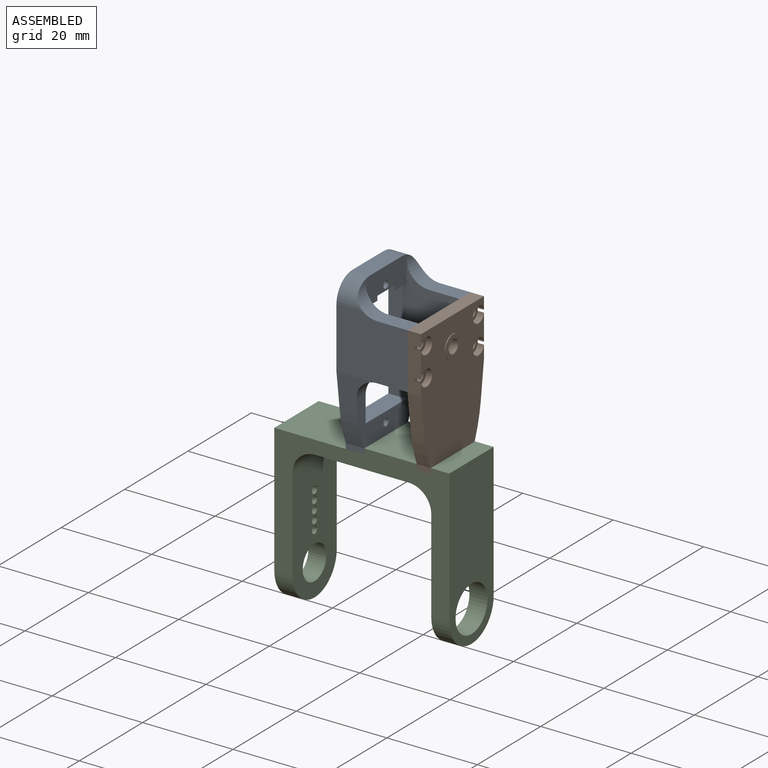
[diagram: assembled view]
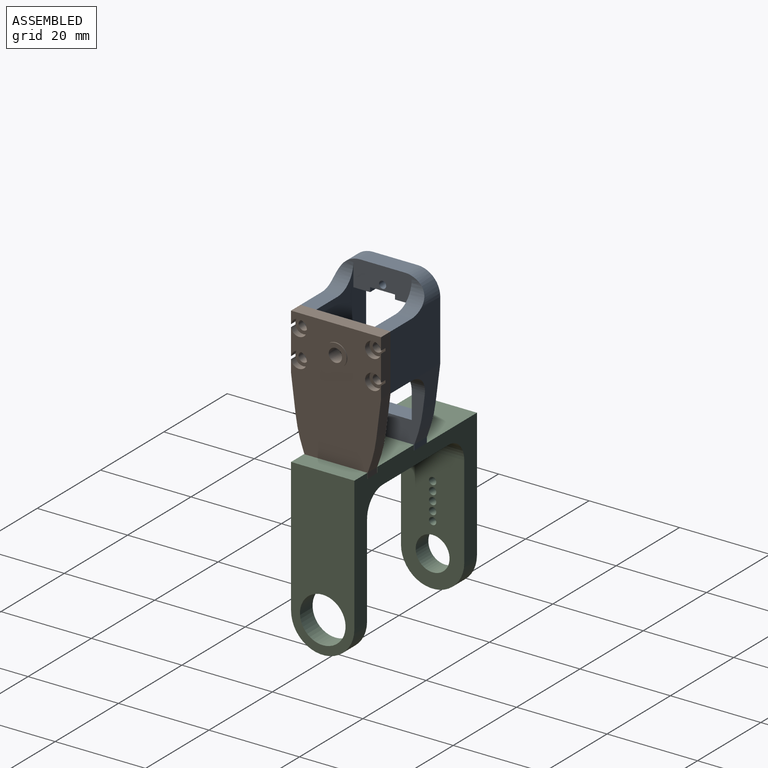
[diagram: assembled view, second angle]
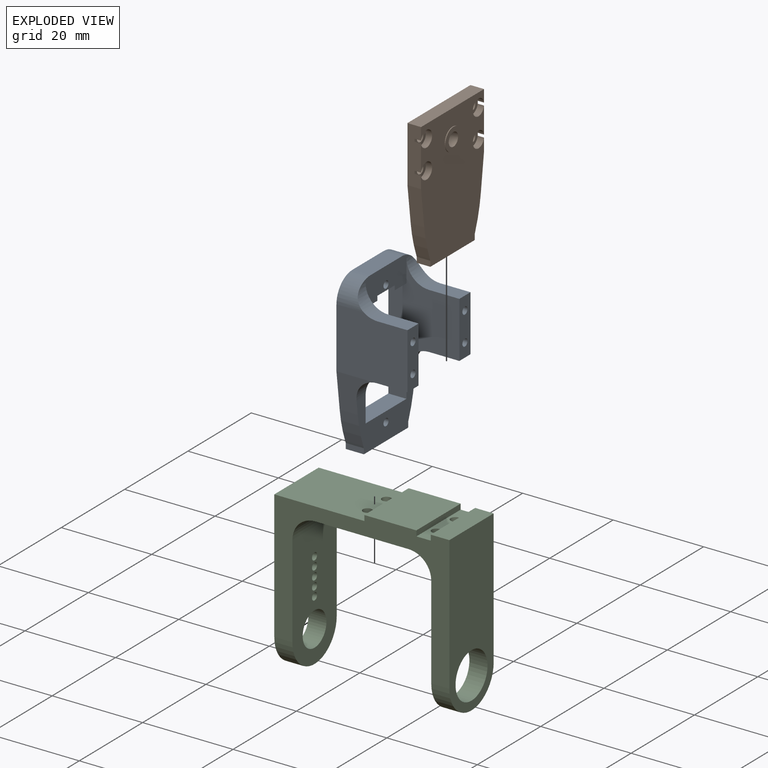
[diagram: exploded view]
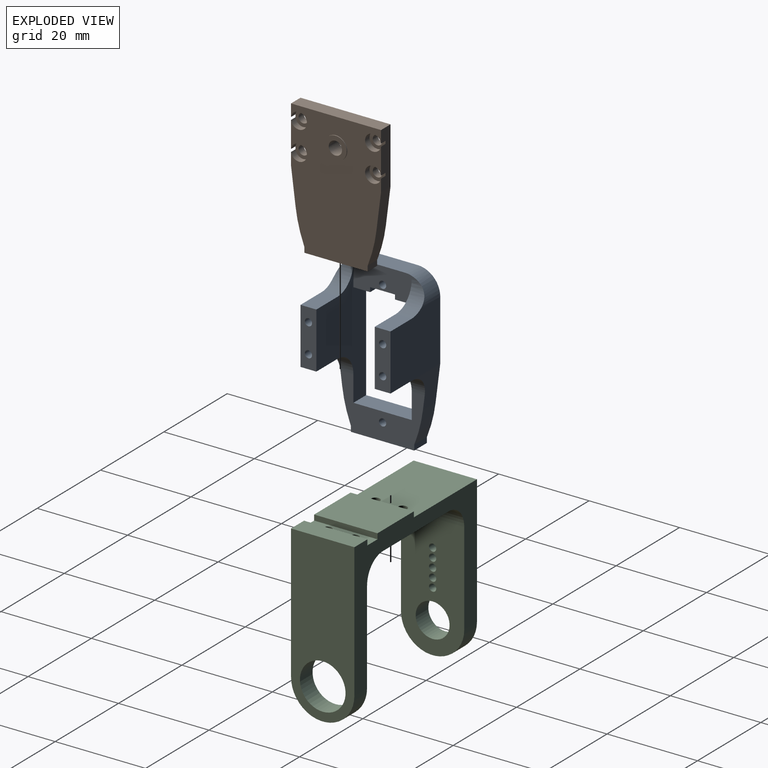
[diagram: exploded view, second angle]
ASSEMBLY  parts=3 mates=2
PART A: 49 faces, bbox 15.7x19.9x35 mm
  f0: plane 15.76x5.95mm, normal (1,0,0), area 70.2mm2, adj f2,f3,f4,f5,f6,f7,f17,f18
  f1: plane 12.9x4mm, normal (0,0,1), area 51.6mm2, adj f2,f18,f21,f22
  f2: plane 28.1x15.7mm, normal (0,1,0), area 248.2mm2, adj f0,f1,f3,f21,f22,f30,f32,f34
  f3: plane 4x3.7mm, normal (0,0,-1), area 14.8mm2, adj f0,f2,f4,f21
  f4: plane 4x1mm, normal (0,1,0), area 4mm2, adj f0,f3,f5,f21
  f5: plane 5.5x4mm, normal (0,0,-1), area 22mm2, adj f0,f4,f6,f21
  f6: plane 4x1mm, normal (0,-1,0), area 4mm2, adj f0,f5,f7,f21
  f7: plane 4x3.7mm, normal (0,0,-1), area 14.8mm2, adj f0,f6,f18,f21
  f8: plane 15.7x13.35mm, normal (0,-1,0), area 201.3mm2, adj f9,f21,f30,f32,f34,f42,f47
  f9: plane 9x8.03mm, normal (0,-0.99,-0.13), area 37.8mm2, adj f8,f21,f22,f44,f48
  f10: plane 4x0.51mm, normal (0,-0.93,-0.36), area 2.2mm2, adj f11,f21,f22,f44
  f11: plane 4x1.2mm, normal (0,-1,0), area 4.8mm2, adj f10,f12,f21,f22
  f12: plane 14x4mm, normal (0,0,-1), area 52mm2, adj f11,f13,f21,f22,f37,f39
  f13: plane 4x1.2mm, normal (0,1,0), area 4.8mm2, adj f12,f14,f21,f22
  f14: plane 4x0.51mm, normal (0,0.93,-0.36), area 2.2mm2, adj f13,f21,f22,f43
  f15: plane 9x8.03mm, normal (0,0.99,-0.13), area 37.8mm2, adj f16,f21,f22,f43,f46
  f16: plane 15.7x13.35mm, normal (0,1,0), area 201.3mm2, adj f15,f21,f23,f24,f27,f41,f45
  f17: cylinder r=0.8mm len=4mm, axis (1,0,0), area 20.1mm2, adj f0,f21
  f18: plane 28.1x15.7mm, normal (0,-1,0), area 248.2mm2, adj f0,f1,f7,f21,f22,f23,f24,f27
  f19: plane 9.9x4mm, normal (0,0,1), area 39.6mm2, adj f0,f21,f41,f42
  f20: cylinder r=0.8mm len=4mm, axis (1,0,0), area 20.1mm2, adj f21,f22
  f21: plane 35x19.9mm, normal (-1,0,0), area 336mm2, adj f1,f2,f3,f4,f5,f6,f7,f8
  f22: plane 18.63x11.65mm, normal (1,0,0), area 117.2mm2, adj f1,f2,f9,f10,f11,f12,f13,f14
  f23: plane 6.7x3.5mm, normal (0,0,-1), area 23.5mm2, adj f16,f18,f27,f46
  f24: plane 6.7x3.5mm, normal (0,0,1), area 23.5mm2, adj f16,f18,f27,f45
  f25: cylinder r=0.8mm len=11.7mm, axis (1,0,0), area 58.8mm2, adj f27,f28
  f26: cylinder r=0.8mm len=11.7mm, axis (1,0,0), area 58.8mm2, adj f27,f29
  f27: plane 12.4x3.5mm, normal (1,0,0), area 39.4mm2, adj f16,f18,f23,f24,f25,f26
  f28: plane 1.6x1.6mm, normal (1,0,0), area 2mm2, adj f25
  f29: plane 1.6x1.6mm, normal (1,0,0), area 2mm2, adj f26
  f30: plane 6.7x3.5mm, normal (0,0,-1), area 23.5mm2, adj f2,f8,f34,f48
  f31: cylinder r=0.8mm len=11.7mm, axis (1,0,0), area 58.8mm2, adj f34,f36
  f32: plane 6.7x3.5mm, normal (0,0,1), area 23.5mm2, adj f2,f8,f34,f47
  f33: cylinder r=0.8mm len=11.7mm, axis (1,0,0), area 58.8mm2, adj f34,f35
  f34: plane 12.4x3.5mm, normal (1,0,0), area 39.4mm2, adj f2,f8,f30,f31,f32,f33
  f35: plane 1.6x1.6mm, normal (1,0,0), area 2mm2, adj f33
  f36: plane 1.6x1.6mm, normal (1,0,0), area 2mm2, adj f31
  f37: cylinder r=0.8mm len=5.75mm, axis (0,0,-1), area 28.9mm2, adj f12,f38
  f38: plane 1.6x1.6mm, normal (0,0,-1), area 2mm2, adj f37
  f39: cylinder r=0.8mm len=5.75mm, axis (0,0,-1), area 28.9mm2, adj f12,f40
  f40: plane 1.6x1.6mm, normal (0,0,-1), area 2mm2, adj f39
  f41: cylinder r=5mm len=6.07mm, axis (1,0,0), area 34mm2, adj f0,f16,f19,f21,f45
  f42: cylinder r=5mm len=6.07mm, axis (1,0,0), area 34mm2, adj f0,f8,f19,f21,f47
  f43: cylinder r=30mm len=6.91mm, axis (1,0,0), area 28.6mm2, adj f14,f15,f21,f22
  f44: cylinder r=30mm len=6.91mm, axis (1,0,0), area 28.6mm2, adj f9,f10,f21,f22
  f45: cylinder r=5mm len=5mm, axis (0,1,0), area 24.9mm2, adj f0,f16,f18,f24,f41
  f46: cylinder r=5mm len=5mm, axis (0,-1,0), area 25.7mm2, adj f15,f18,f22,f23
  f47: cylinder r=5mm len=5mm, axis (0,1,0), area 24.9mm2, adj f0,f2,f8,f32,f42
  f48: cylinder r=5mm len=5mm, axis (0,-1,0), area 25.7mm2, adj f2,f9,f22,f30
PART B: 33 faces, bbox 3.2x19.9x29.1 mm
  f0: cylinder r=1.05mm len=2.1mm, axis (1,0,0), area 10.6mm2, adj f15,f28
  f1: cylinder r=1.05mm len=2.1mm, axis (1,0,0), area 10.6mm2, adj f15,f22
  f2: cylinder r=1.05mm len=2.1mm, axis (1,0,0), area 10.6mm2, adj f15,f26
  f3: cylinder r=1.05mm len=2.1mm, axis (1,0,0), area 10.6mm2, adj f15,f24
  f4: plane 3x0.51mm, normal (0,-0.93,-0.36), area 1.6mm2, adj f5,f15,f16,f31
  f5: plane 3x1.2mm, normal (0,-1,0), area 3.6mm2, adj f4,f6,f15,f16
  f6: plane 14x3mm, normal (0,0,-1), area 38mm2, adj f5,f7,f15,f16,f17,f19
  f7: plane 3x1.2mm, normal (0,1,0), area 3.6mm2, adj f6,f8,f15,f16
  f8: plane 3x0.51mm, normal (0,0.93,-0.36), area 1.6mm2, adj f7,f15,f16,f32
  f9: plane 8.03x3mm, normal (0,0.99,-0.13), area 24.3mm2, adj f10,f15,f16,f32
  f10: plane 12.4x3mm, normal (0,1,0), area 35.5mm2, adj f9,f11,f15,f16,f23,f24,f25,f26
  f11: plane 19.9x3mm, normal (0,0,1), area 59.7mm2, adj f10,f12,f15,f16
  f12: plane 12.4x3mm, normal (0,-1,0), area 35.5mm2, adj f11,f13,f15,f16,f21,f22,f27,f28
  f13: plane 8.03x3mm, normal (0,-0.99,-0.13), area 24.3mm2, adj f12,f15,f16,f31
  f14: cylinder r=1.47mm len=3.2mm, axis (1,0,0), area 29.7mm2, adj f15,f30
  f15: plane 29.05x19.9mm, normal (-1,0,0), area 515.1mm2, adj f0,f1,f2,f3,f4,f5,f6,f7
  f16: plane 29.05x19.9mm, normal (1,0,0), area 476.6mm2, adj f4,f5,f6,f7,f8,f9,f10,f11
  f17: cylinder r=0.8mm len=12mm, axis (0,0,1), area 60.3mm2, adj f6,f18
  f18: plane 1.6x1.6mm, normal (0,0,-1), area 2mm2, adj f17
  f19: cylinder r=0.8mm len=12mm, axis (0,0,1), area 60.3mm2, adj f6,f20
  f20: plane 1.6x1.6mm, normal (0,0,-1), area 2mm2, adj f19
  f21: cylinder r=1.78mm len=3.55mm, axis (1,0,0), area 14.8mm2, adj f12,f16,f22
  f22: plane 3.55x3.53mm, normal (1,0,0), area 6.4mm2, adj f1,f12,f21
  f23: cylinder r=1.78mm len=3.55mm, axis (1,0,0), area 14.8mm2, adj f10,f16,f24
  f24: plane 3.55x3.53mm, normal (1,0,0), area 6.4mm2, adj f3,f10,f23
  f25: cylinder r=1.78mm len=3.55mm, axis (1,0,0), area 14.8mm2, adj f10,f16,f26
  f26: plane 3.55x3.53mm, normal (1,0,0), area 6.4mm2, adj f2,f10,f25
  f27: cylinder r=1.78mm len=3.55mm, axis (1,0,0), area 14.8mm2, adj f12,f16,f28
  f28: plane 3.55x3.53mm, normal (1,0,0), area 6.4mm2, adj f0,f12,f27
  f29: cylinder r=2.5mm len=5mm, axis (1,0,0), area 3.1mm2, adj f16,f30
  f30: plane 5x5mm, normal (1,0,0), area 12.8mm2, adj f14,f29
  f31: cylinder r=30mm len=6.91mm, axis (1,0,0), area 21.4mm2, adj f4,f13,f15,f16
  f32: cylinder r=30mm len=6.91mm, axis (1,0,0), area 21.4mm2, adj f8,f9,f15,f16
PART C: 43 faces, bbox 38.7x14x36.7 mm
  f0: cylinder r=0.8mm len=2mm, axis (-1,0,0), area 10.1mm2, adj f14,f39
  f1: cylinder r=0.8mm len=2mm, axis (-1,0,0), area 10.1mm2, adj f14,f39
  f2: cylinder r=0.8mm len=2mm, axis (-1,0,0), area 10.1mm2, adj f14,f39
  f3: cylinder r=0.8mm len=2mm, axis (-1,0,0), area 10.1mm2, adj f14,f39
  f4: cylinder r=0.8mm len=2mm, axis (-1,0,0), area 10.1mm2, adj f14,f39
  f5: plane 20.7x14mm, normal (0,0,-1), area 270mm2, adj f16,f17,f28,f29,f41,f42
  f6: cylinder r=1mm len=2mm, axis (0,0,1), area 10.7mm2, adj f12,f33
  f7: cylinder r=1mm len=2mm, axis (0,0,1), area 10.7mm2, adj f12,f34
  f8: plane 14x3.2mm, normal (0,0,1), area 38.5mm2, adj f9,f10,f16,f17,f21,f32
  f9: cylinder r=1mm len=2mm, axis (0,0,-1), area 11.3mm2, adj f8,f25
  f10: cylinder r=1mm len=2mm, axis (0,0,-1), area 11.3mm2, adj f8,f23
  f11: plane 36.7x14mm, normal (1,0,0), area 412.7mm2, adj f16,f17,f19,f20,f35
  f12: plane 19.9x14mm, normal (0,0,1), area 272.3mm2, adj f6,f7,f13,f16,f17,f31
  f13: plane 35.5x14mm, normal (-1,0,0), area 372.9mm2, adj f12,f16,f17,f18,f36,f37,f38,f40
  f14: plane 27.5x14mm, normal (1,0,0), area 309.7mm2, adj f0,f1,f2,f3,f4,f16,f17,f18
  f15: plane 27.5x14mm, normal (-1,0,0), area 281.3mm2, adj f16,f17,f19,f22,f24,f26,f27,f35
  f16: plane 38.7x29.7mm, normal (0,-1,0), area 349.6mm2, adj f5,f8,f11,f12,f13,f14,f15,f18
  f17: plane 38.7x29.7mm, normal (0,1,0), area 349.6mm2, adj f5,f8,f11,f12,f13,f14,f15,f18
  f18: cylinder r=7mm len=14mm, axis (-1,0,0), area 88mm2, adj f13,f14,f16,f17
  f19: cylinder r=7mm len=14mm, axis (-1,0,0), area 88mm2, adj f11,f15,f16,f17
  f20: plane 14x4.1mm, normal (0,0,1), area 57.4mm2, adj f11,f16,f17,f21
  f21: plane 14x1.2mm, normal (-1,0,0), area 16.8mm2, adj f8,f16,f17,f20
  f22: cylinder r=1.88mm len=7mm, axis (0,0,-1), area 37.7mm2, adj f15,f23,f26,f41
  f23: plane 3.75x3.75mm, normal (0,0,-1), area 7.9mm2, adj f10,f22
  f24: cylinder r=1.88mm len=7mm, axis (0,0,-1), area 37.7mm2, adj f15,f25,f27,f41
  f25: plane 3.75x3.75mm, normal (0,0,-1), area 7.9mm2, adj f9,f24
  f26: plane 1.58x0.18mm, normal (0,0,1), area 0.2mm2, adj f15,f22
  f27: plane 1.58x0.18mm, normal (0,0,1), area 0.2mm2, adj f15,f24
  f28: cylinder r=1.78mm len=3.55mm, axis (0,0,1), area 14.5mm2, adj f5,f34
  f29: cylinder r=1.78mm len=3.55mm, axis (0,0,1), area 14.5mm2, adj f5,f33
  f30: plane 14x11.5mm, normal (0,0,1), area 161mm2, adj f16,f17,f31,f32
  f31: plane 14x1.2mm, normal (-1,0,0), area 16.8mm2, adj f12,f16,f17,f30
  f32: plane 14x1.2mm, normal (1,0,0), area 16.8mm2, adj f8,f16,f17,f30
  f33: plane 3.55x3.55mm, normal (0,0,-1), area 6.8mm2, adj f6,f29
  f34: plane 3.55x3.55mm, normal (0,0,-1), area 6.8mm2, adj f7,f28
  f35: cylinder r=5.05mm len=10.1mm, axis (-1,0,0), area 126.9mm2, adj f11,f15
  f36: cylinder r=3.75mm len=7.5mm, axis (-1,0,0), area 80.7mm2, adj f13,f14,f37,f38,f39
  f37: plane 11.82x2mm, normal (0,1,-0.08), area 23.7mm2, adj f13,f36,f39,f40
  f38: plane 11.82x2mm, normal (0,-1,-0.08), area 23.7mm2, adj f13,f36,f39,f40
  f39: plane 13.82x5.88mm, normal (-1,0,0), area 48.8mm2, adj f0,f1,f2,f3,f4,f36,f37,f38
  f40: cylinder r=2mm len=4mm, axis (-1,0,0), area 12.6mm2, adj f13,f37,f38,f39
  f41: cylinder r=5mm len=14mm, axis (0,1,0), area 73.8mm2, adj f5,f15,f16,f17,f22,f24
  f42: cylinder r=5mm len=14mm, axis (0,-1,0), area 110mm2, adj f5,f14,f16,f17
PLACE A t=(73.6,23.28,24.35)mm
PLACE B t=(73.6,23.28,24.35)mm
PLACE C t=(73.6,23.28,24.35)mm
MATE fastened B.f19 <-> C.f10  axis (0,0,-1) through (41.62,13.28,-0.36)mm
MATE fastened A.f39 <-> C.f6  axis (0,0,-1) through (26.42,13.28,-0.36)mm
